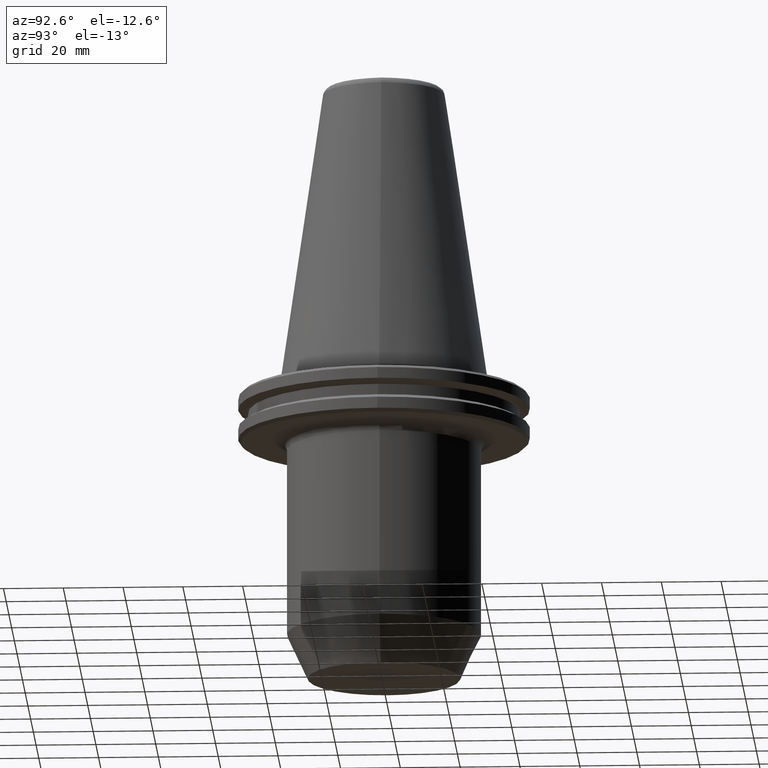
[diagram: clean part render]
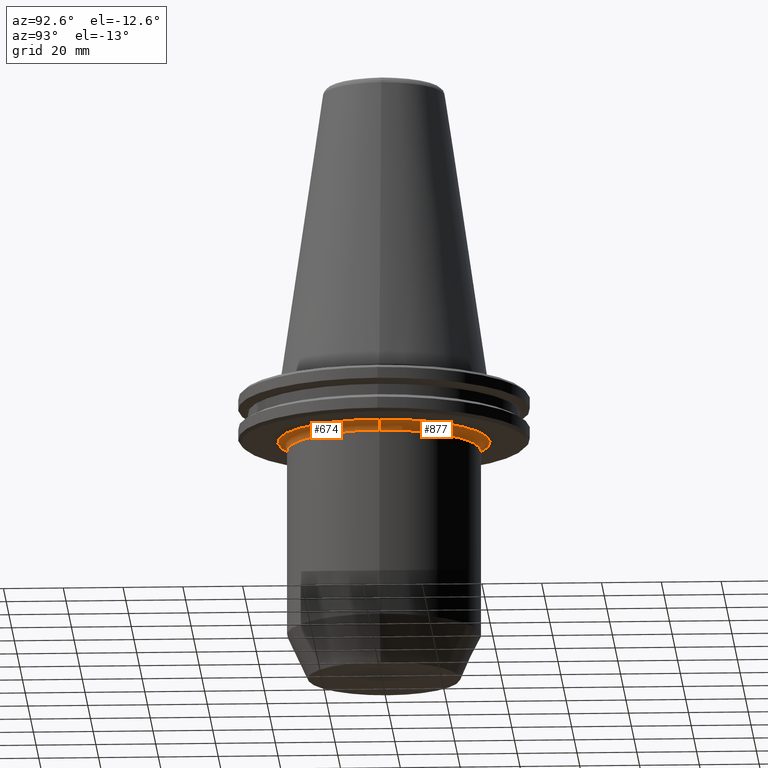
[diagram: same view with one multi-face feature highlighted, each face labeled with its STEP entity id]
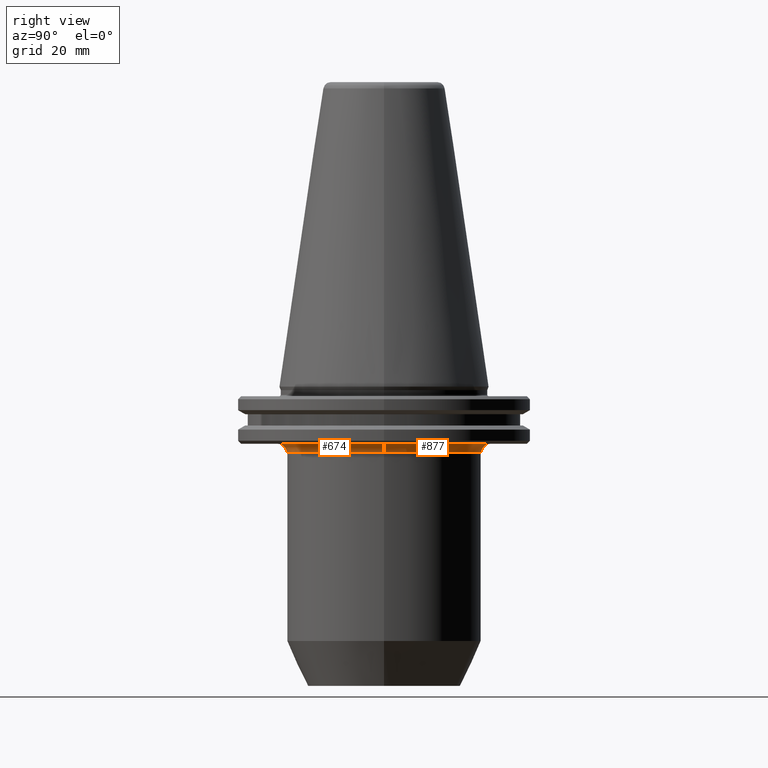
[diagram: same view with one multi-face feature highlighted, each face labeled with its STEP entity id]
A machine part, auxiliary view. The highlighted faces form ONE feature: a constant-radius fillet chain: 2 tangent blend faces with common blend radius 3 mm. The faces share edges in the B-rep.
A second angle (right view) of the same feature is appended — it is thin or edge-on in the first view.
Their STEP definitions:
[1] entity #674 (Torus):
#17 = VERTEX_POINT ( 'NONE', #117 ) ;
#29 = EDGE_CURVE ( 'NONE', #126, #64, #951, .T. ) ;
#35 = CIRCLE ( 'NONE', #568, 2.999999999999999100 ) ;
#45 = AXIS2_PLACEMENT_3D ( 'NONE', #205, #948, #362 ) ;
#64 = VERTEX_POINT ( 'NONE', #823 ) ;
#100 = DIRECTION ( 'NONE',  ( 0.0000000000000000000, 0.0000000000000000000, -1.000000000000000000 ) ) ;
#117 = CARTESIAN_POINT ( 'NONE',  ( 35.50000000000000700, 0.0000000000000000000, -19.09999999999995200 ) ) ;
#126 = VERTEX_POINT ( 'NONE', #695 ) ;
#165 = EDGE_CURVE ( 'NONE', #17, #765, #35, .T. ) ;
#175 = EDGE_CURVE ( 'NONE', #126, #17, #633, .T. ) ;
#205 = CARTESIAN_POINT ( 'NONE',  ( 0.0000000000000000000, 0.0000000000000000000, -22.09999999999995200 ) ) ;
#263 = DIRECTION ( 'NONE',  ( 0.0000000000000000000, 0.0000000000000000000, -1.000000000000000000 ) ) ;
#362 = DIRECTION ( 'NONE',  ( 1.000000000000000000, 0.0000000000000000000, 0.0000000000000000000 ) ) ;
#410 = FACE_OUTER_BOUND ( 'NONE', #851, .T. ) ;
#502 = TOROIDAL_SURFACE ( 'NONE', #45, 35.50000000000000700, 3.000000000000000000 ) ;
#543 = CARTESIAN_POINT ( 'NONE',  ( -35.50000000000000700, 4.347496136973104100E-015, -22.09999999999995200 ) ) ;
#544 = CARTESIAN_POINT ( 'NONE',  ( 35.50000000000000700, 0.0000000000000000000, -22.09999999999995200 ) ) ;
#563 = AXIS2_PLACEMENT_3D ( 'NONE', #804, #787, #802 ) ;
#568 = AXIS2_PLACEMENT_3D ( 'NONE', #544, #652, #263 ) ;
#627 = DIRECTION ( 'NONE',  ( -1.000000000000000000, 1.224646799147352000E-016, 0.0000000000000000000 ) ) ;
#633 = CIRCLE ( 'NONE', #563, 35.50000000000000700 ) ;
#652 = DIRECTION ( 'NONE',  ( 0.0000000000000000000, -1.000000000000000000, 0.0000000000000000000 ) ) ;
#668 = CARTESIAN_POINT ( 'NONE',  ( 32.50000000000000000, 0.0000000000000000000, -22.09999999999995200 ) ) ;
#674 = ADVANCED_FACE ( 'NONE', ( #410 ), #502, .F. ) ;
#694 = ORIENTED_EDGE ( 'NONE', *, *, #175, .F. ) ;
#695 = CARTESIAN_POINT ( 'NONE',  ( -35.50000000000000700, 4.347496136973104100E-015, -19.09999999999995200 ) ) ;
#737 = ORIENTED_EDGE ( 'NONE', *, *, #29, .T. ) ;
#765 = VERTEX_POINT ( 'NONE', #668 ) ;
#767 = EDGE_CURVE ( 'NONE', #765, #64, #992, .T. ) ;
#787 = DIRECTION ( 'NONE',  ( -0.0000000000000000000, -0.0000000000000000000, 1.000000000000000000 ) ) ;
#802 = DIRECTION ( 'NONE',  ( 1.000000000000000000, 0.0000000000000000000, 0.0000000000000000000 ) ) ;
#804 = CARTESIAN_POINT ( 'NONE',  ( 0.0000000000000000000, 0.0000000000000000000, -19.09999999999995200 ) ) ;
#823 = CARTESIAN_POINT ( 'NONE',  ( -32.50000000000000000, 3.980102097228898600E-015, -22.09999999999995200 ) ) ;
#851 = EDGE_LOOP ( 'NONE', ( #694, #737, #916, #998 ) ) ;
#864 = DIRECTION ( 'NONE',  ( 1.224646799147353200E-016, 1.000000000000000000, 0.0000000000000000000 ) ) ;
#874 = DIRECTION ( 'NONE',  ( 1.000000000000000000, 0.0000000000000000000, 0.0000000000000000000 ) ) ;
#916 = ORIENTED_EDGE ( 'NONE', *, *, #767, .F. ) ;
#920 = AXIS2_PLACEMENT_3D ( 'NONE', #543, #864, #627 ) ;
#948 = DIRECTION ( 'NONE',  ( -0.0000000000000000000, -0.0000000000000000000, 1.000000000000000000 ) ) ;
#951 = CIRCLE ( 'NONE', #920, 3.000000000000002700 ) ;
#990 = CARTESIAN_POINT ( 'NONE',  ( 0.0000000000000000000, 0.0000000000000000000, -22.09999999999995200 ) ) ;
#991 = AXIS2_PLACEMENT_3D ( 'NONE', #990, #100, #874 ) ;
#992 = CIRCLE ( 'NONE', #991, 32.50000000000000000 ) ;
#998 = ORIENTED_EDGE ( 'NONE', *, *, #165, .F. ) ;
[2] entity #877 (Torus):
#17 = VERTEX_POINT ( 'NONE', #117 ) ;
#29 = EDGE_CURVE ( 'NONE', #126, #64, #951, .T. ) ;
#31 = CARTESIAN_POINT ( 'NONE',  ( 0.0000000000000000000, 0.0000000000000000000, -22.09999999999995200 ) ) ;
#35 = CIRCLE ( 'NONE', #568, 2.999999999999999100 ) ;
#60 = AXIS2_PLACEMENT_3D ( 'NONE', #774, #535, #618 ) ;
#64 = VERTEX_POINT ( 'NONE', #823 ) ;
#101 = ORIENTED_EDGE ( 'NONE', *, *, #164, .F. ) ;
#117 = CARTESIAN_POINT ( 'NONE',  ( 35.50000000000000700, 0.0000000000000000000, -19.09999999999995200 ) ) ;
#126 = VERTEX_POINT ( 'NONE', #695 ) ;
#164 = EDGE_CURVE ( 'NONE', #64, #765, #450, .T. ) ;
#165 = EDGE_CURVE ( 'NONE', #17, #765, #35, .T. ) ;
#263 = DIRECTION ( 'NONE',  ( 0.0000000000000000000, 0.0000000000000000000, -1.000000000000000000 ) ) ;
#302 = DIRECTION ( 'NONE',  ( 1.000000000000000000, 0.0000000000000000000, 0.0000000000000000000 ) ) ;
#355 = DIRECTION ( 'NONE',  ( 0.0000000000000000000, 0.0000000000000000000, -1.000000000000000000 ) ) ;
#365 = AXIS2_PLACEMENT_3D ( 'NONE', #677, #601, #302 ) ;
#450 = CIRCLE ( 'NONE', #590, 32.50000000000000000 ) ;
#513 = EDGE_LOOP ( 'NONE', ( #975, #891, #986, #101 ) ) ;
#533 = DIRECTION ( 'NONE',  ( 1.000000000000000000, 0.0000000000000000000, 0.0000000000000000000 ) ) ;
#535 = DIRECTION ( 'NONE',  ( -0.0000000000000000000, -0.0000000000000000000, 1.000000000000000000 ) ) ;
#543 = CARTESIAN_POINT ( 'NONE',  ( -35.50000000000000700, 4.347496136973104100E-015, -22.09999999999995200 ) ) ;
#544 = CARTESIAN_POINT ( 'NONE',  ( 35.50000000000000700, 0.0000000000000000000, -22.09999999999995200 ) ) ;
#568 = AXIS2_PLACEMENT_3D ( 'NONE', #544, #652, #263 ) ;
#590 = AXIS2_PLACEMENT_3D ( 'NONE', #31, #355, #533 ) ;
#601 = DIRECTION ( 'NONE',  ( -0.0000000000000000000, -0.0000000000000000000, 1.000000000000000000 ) ) ;
#618 = DIRECTION ( 'NONE',  ( 1.000000000000000000, 0.0000000000000000000, 0.0000000000000000000 ) ) ;
#627 = DIRECTION ( 'NONE',  ( -1.000000000000000000, 1.224646799147352000E-016, 0.0000000000000000000 ) ) ;
#652 = DIRECTION ( 'NONE',  ( 0.0000000000000000000, -1.000000000000000000, 0.0000000000000000000 ) ) ;
#661 = EDGE_CURVE ( 'NONE', #17, #126, #717, .T. ) ;
#668 = CARTESIAN_POINT ( 'NONE',  ( 32.50000000000000000, 0.0000000000000000000, -22.09999999999995200 ) ) ;
#677 = CARTESIAN_POINT ( 'NONE',  ( 0.0000000000000000000, 0.0000000000000000000, -22.09999999999995200 ) ) ;
#695 = CARTESIAN_POINT ( 'NONE',  ( -35.50000000000000700, 4.347496136973104100E-015, -19.09999999999995200 ) ) ;
#717 = CIRCLE ( 'NONE', #60, 35.50000000000000700 ) ;
#732 = TOROIDAL_SURFACE ( 'NONE', #365, 35.50000000000000700, 3.000000000000000000 ) ;
#765 = VERTEX_POINT ( 'NONE', #668 ) ;
#774 = CARTESIAN_POINT ( 'NONE',  ( 0.0000000000000000000, 0.0000000000000000000, -19.09999999999995200 ) ) ;
#823 = CARTESIAN_POINT ( 'NONE',  ( -32.50000000000000000, 3.980102097228898600E-015, -22.09999999999995200 ) ) ;
#864 = DIRECTION ( 'NONE',  ( 1.224646799147353200E-016, 1.000000000000000000, 0.0000000000000000000 ) ) ;
#877 = ADVANCED_FACE ( 'NONE', ( #932 ), #732, .F. ) ;
#891 = ORIENTED_EDGE ( 'NONE', *, *, #661, .F. ) ;
#920 = AXIS2_PLACEMENT_3D ( 'NONE', #543, #864, #627 ) ;
#932 = FACE_OUTER_BOUND ( 'NONE', #513, .T. ) ;
#951 = CIRCLE ( 'NONE', #920, 3.000000000000002700 ) ;
#975 = ORIENTED_EDGE ( 'NONE', *, *, #29, .F. ) ;
#986 = ORIENTED_EDGE ( 'NONE', *, *, #165, .T. ) ;